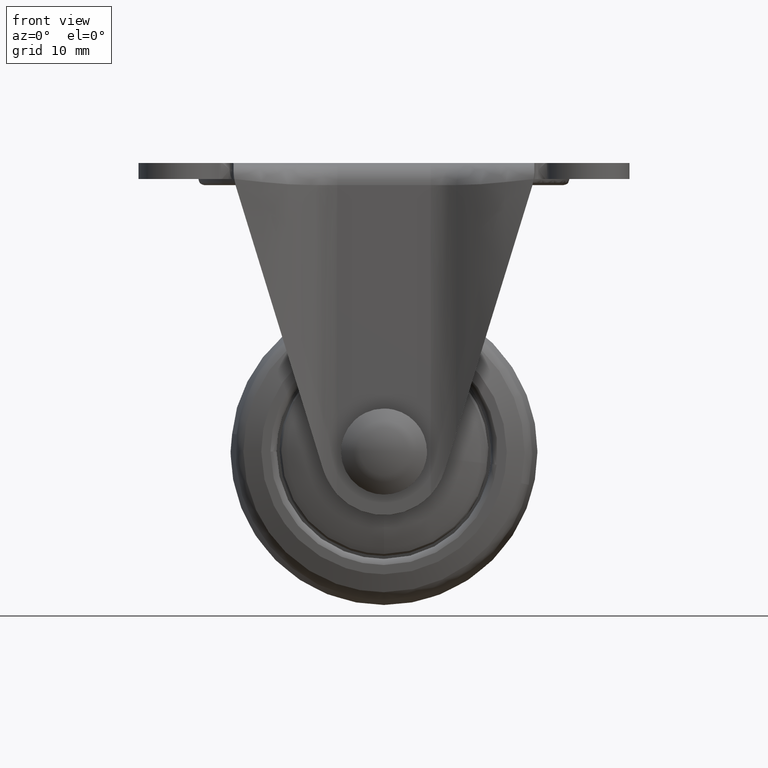
[diagram: clean part render]
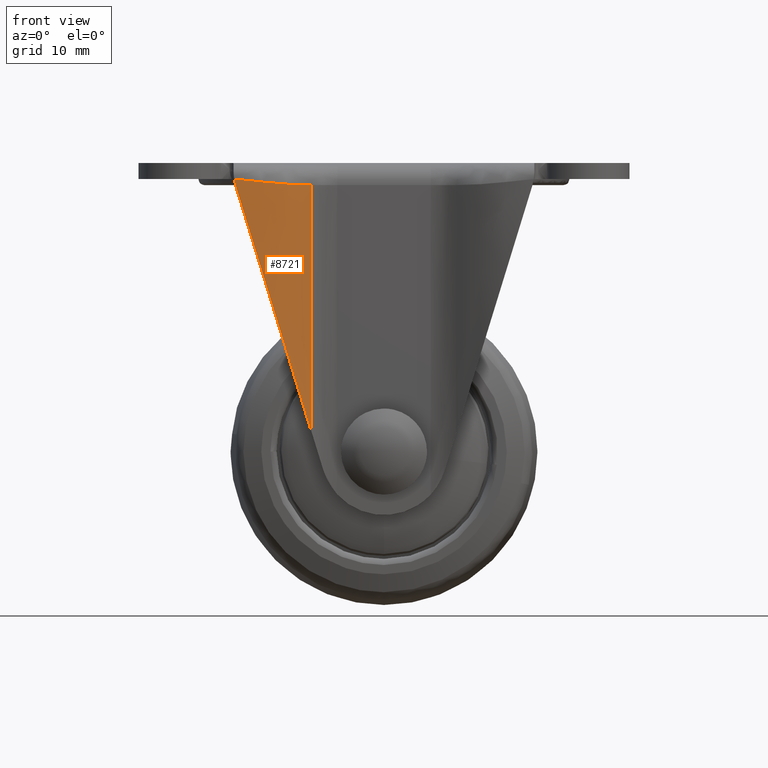
[diagram: same view with one face highlighted and labeled with its STEP entity id]
A machine part, front view. The second image highlights one B-rep face of the part: STEP entity #8721.
In plain terms, the highlighted face is a freeform B-spline surface patch.
Its self-contained STEP definition (entity closure, byte-faithful):
#5780=CARTESIAN_POINT('',(-24.057246435837801,-23.995359904471101,-4.038003514926509));
#5781=VERTEX_POINT('',#5780);
#5787=CARTESIAN_POINT('',(-24.384188335772901,-23.999531687041500,-2.612881104236115));
#5788=VERTEX_POINT('',#5787);
#5789=CARTESIAN_POINT('',(-24.384188335772901,-23.999531687041500,-2.612881104236115));
#5790=CARTESIAN_POINT('',(-24.310221379274228,-23.999537292469551,-3.095062176281696));
#5791=CARTESIAN_POINT('',(-24.200844362487590,-23.998141486856959,-3.571804953549394));
#5792=CARTESIAN_POINT('',(-24.057246435837801,-23.995359904471101,-4.038003514926509));
#5793=B_SPLINE_CURVE_WITH_KNOTS('',3,(#5789,#5790,#5791,#5792),.UNSPECIFIED.,.F.,.U.,(4,4),(9.965175E-010,1.463465665365437),.UNSPECIFIED.);
#5794=EDGE_CURVE('',#5788,#5781,#5793,.T.);
#7545=CARTESIAN_POINT('',(-11.779543599850520,-19.741035465963002,-3.600000000000050));
#7546=VERTEX_POINT('',#7545);
#7547=CARTESIAN_POINT('',(-11.779543599850520,-19.741035465963002,-3.600000000000050));
#7548=CARTESIAN_POINT('',(-11.944666356425000,-19.863415104986888,-3.599384753612009));
#7549=CARTESIAN_POINT('',(-12.278867104317641,-20.111105779107650,-3.598139523655296));
#7550=CARTESIAN_POINT('',(-12.799826147816869,-20.467866244838429,-3.588351444015810));
#7551=CARTESIAN_POINT('',(-13.342913550270749,-20.817773783980360,-3.572814572551116));
#7552=CARTESIAN_POINT('',(-13.909386196987660,-21.157995252467089,-3.550920040839340));
#7553=CARTESIAN_POINT('',(-14.499113583814649,-21.487395757291910,-3.522836260209454));
#7554=CARTESIAN_POINT('',(-15.112260349222510,-21.804301901869110,-3.488517607205993));
#7555=CARTESIAN_POINT('',(-15.748811386218019,-22.107124363170161,-3.447971934896652));
#7556=CARTESIAN_POINT('',(-16.408698403194631,-22.394189564457481,-3.401214813266349));
#7557=CARTESIAN_POINT('',(-17.091746428666521,-22.663786359819159,-3.348172937856868));
#7558=CARTESIAN_POINT('',(-17.776816184331128,-22.906757714624209,-3.290879803388269));
#7559=CARTESIAN_POINT('',(-18.487366131154459,-23.131706734164322,-3.226585429585307));
#7560=CARTESIAN_POINT('',(-19.248250324729131,-23.343461654837320,-3.153516137115072));
#7561=CARTESIAN_POINT('',(-20.107076749797798,-23.546179848229951,-3.067777584320536));
#7562=CARTESIAN_POINT('',(-21.064999754257460,-23.728531037497920,-2.969277436704177));
#7563=CARTESIAN_POINT('',(-22.122361114481940,-23.876175772891042,-2.857991820112594));
#7564=CARTESIAN_POINT('',(-23.239943019747770,-23.977132541438369,-2.738213436945596));
#7565=CARTESIAN_POINT('',(-24.005288805038688,-23.992920477336430,-2.654409848945420));
#7566=CARTESIAN_POINT('',(-24.384188335772901,-23.999531687041500,-2.612881104236115));
#7567=B_SPLINE_CURVE_WITH_KNOTS('',3,(#7547,#7548,#7549,#7550,#7551,#7552,#7553,#7554,#7555,#7556,#7557,#7558,#7559,#7560,#7561,#7562,#7563,#7564,#7565,#7566),.UNSPECIFIED.,.F.,.U.,(4,1,1,1,1,1,1,1,1,1,1,1,1,1,1,1,1,4),(0.0,0.045021375328809,0.091121161117829,0.138303532161432,0.186572381852095,0.235931345978412,0.286383824153485,0.337932999139237,0.390581854299864,0.444333189389439,0.499189634854167,0.550280393827991,0.608187386506452,0.672912011683897,0.744455157495186,0.822817367912773,0.907998942640218,0.991494635523826),.UNSPECIFIED.);
#7568=EDGE_CURVE('',#7546,#5788,#7567,.T.);
#8083=CARTESIAN_POINT('',(-11.779543599850520,-19.741035465963002,-43.914318252185751));
#8084=VERTEX_POINT('',#8083);
#8085=CARTESIAN_POINT('',(-24.057246435837818,-23.995359904471108,-4.038003514926510));
#8086=CARTESIAN_POINT('',(-17.230900232105800,-23.852262794164531,-26.209050767156544));
#8087=CARTESIAN_POINT('',(-11.779543599850530,-19.741035465963002,-43.914318252185730));
#8095=(BOUNDED_CURVE()B_SPLINE_CURVE(2,(#8085,#8086,#8087),.UNSPECIFIED.,.F.,.U.)CURVE()GEOMETRIC_REPRESENTATION_ITEM()QUASI_UNIFORM_CURVE()RATIONAL_B_SPLINE_CURVE((1.0,0.951536806072862,1.0))REPRESENTATION_ITEM(''));
#8096=EDGE_CURVE('',#5781,#8084,#8095,.T.);
#8691=CARTESIAN_POINT('',(-11.779543599850520,-19.741035465963002,-43.914318252185751));
#8692=CARTESIAN_POINT('',(-11.779543599850520,-19.741035465963002,-3.600000000000050));
#8693=QUASI_UNIFORM_CURVE('',1,(#8691,#8692),.UNSPECIFIED.,.F.,.U.);
#8694=EDGE_CURVE('',#8084,#7546,#8693,.T.);
#8701=CARTESIAN_POINT('',(-11.632838175658129,-19.629387710983369,-44.946854180884493));
#8702=CARTESIAN_POINT('',(-11.632838175658129,-19.629387710983369,-1.554531777319900));
#8703=CARTESIAN_POINT('',(-17.568167487741682,-24.187406196070530,-44.946854180884493));
#8704=CARTESIAN_POINT('',(-17.568167487741682,-24.187406196070530,-1.554531777319900));
#8705=CARTESIAN_POINT('',(-25.049198058856220,-23.992860192964788,-44.946854180884493));
#8706=CARTESIAN_POINT('',(-25.049198058856220,-23.992860192964788,-1.554531777319900));
#8714=(BOUNDED_SURFACE()B_SPLINE_SURFACE(1,2,((#8701,#8703,#8705),(#8702,#8704,#8706)),.UNSPECIFIED.,.F.,.F.,.U.)B_SPLINE_SURFACE_WITH_KNOTS((2,2),(3,3),(0.0,43.392322403564599),(0.0,14.524914026416820),.UNSPECIFIED.)GEOMETRIC_REPRESENTATION_ITEM()RATIONAL_B_SPLINE_SURFACE(((1.0,0.941210616305785,0.997040427814073),(1.0,0.941210616305785,0.997040427814073)))REPRESENTATION_ITEM('')SURFACE());
#8715=ORIENTED_EDGE('',*,*,#7568,.T.);
#8716=ORIENTED_EDGE('',*,*,#5794,.T.);
#8717=ORIENTED_EDGE('',*,*,#8096,.T.);
#8718=ORIENTED_EDGE('',*,*,#8694,.T.);
#8719=EDGE_LOOP('',(#8715,#8716,#8717,#8718));
#8720=FACE_OUTER_BOUND('',#8719,.T.);
#8721=ADVANCED_FACE('',(#8720),#8714,.T.);